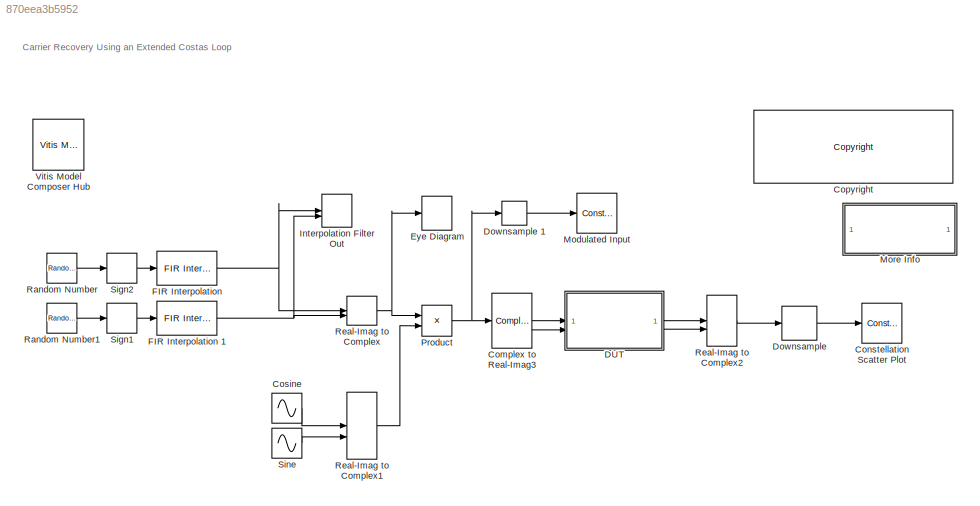
MODEL slx_870eea3b5952
KIND model
CONFIG AbsTol = auto
CONFIG EnableMultiTasking = on
CONFIG FixedStep = auto
CONFIG MaxStep = auto
CONFIG MinStep = auto
CONFIG PreLoadFcn = CostasLoop_PreLoadFcn
CONFIG RelTol = 1e-3
CONFIG SampleTimeConstraint = Unconstrained
CONFIG SolverName = ode45
CONFIG StartTime = 0.0
CONFIG StopTime = 5000
BLOCK [EyeDiagramBlock]  Eye Diagram
  GraphicalSettings = {"GraphicalSettings":{"Style":{"AxesColor":"[0 0 0]","AxesProperties":"struct","BackgroundColor":"[0 0 0]","ContrastColor":"[1 0 1]","CurrentConfiguration":"extmgr.ConfigurationSet","DisplayName":"","LabelsColor":"[0.686274509803922 0.686274509803922 0.686274509803922]","LineColor":"[1 1 0.0667]","LineProperties":"struct","LineStyle":"-","LineWidth":"0.5","Marker":"none","MarkerEdgeColor":"auto","...<+171ch>
  NameLocation = top
  SampleOffset = 16
  SamplesPerSymbol = 32
  ScopeFrameLocation = window
  ScopeSpecificationString = comm.scopes.EyeDiagramBlockCfg('CurrentConfiguration', extmgr.ConfigurationSet(extmgr.Configuration('Core','General UI',true),extmgr.Configuration('Core','Source UI',true),extmgr.Configuration('Sources','WiredSimulink',true),extmgr.Configuration('Sources','Streaming',false),extmgr.Configuration('Sources','File',false),extmgr.Configuration('Sources','Simulink',false),extmgr.Configuration('Sources',...<+1122ch>
  SymbolsPerTrace = 1
  Tag = EyeDiagram
  Title = Eye Diagram
  Visible = on
  WasSavedAsWebScope = on
  WindowPosition = [560.000000,350.000000,800.000000,500.000000,]
  YLimits = [-2.0252 2.0024]
BLOCK [ComplexToRealImag] Complex to Real-Imag3
BLOCK [ConstellationDiagram] Constellation Scatter Plot
  DefaultConfigurationName = comm.scopes.ConstellationDiagramBlockCfg
  GraphicalSettings = {"GraphicalSettings":{"Style":{"AuxLineProperties":"struct","AxesProperties":"struct","Box":"on","Color":"[1 1 0.0666666666666667]","CurrentConfiguration":"extmgr.ConfigurationSet","FontName":"Helvetica","FontSize":"10","FontUnits":"points","FontWeight":"normal","LineColor":"[1 1 0.0666666666666667]","LineProperties":"struct","LineStyle":"-","LineWidth":"0.5","Marker":".","MarkerEdgeColor":"auto",...<+748ch>
  SamplesPerSymbol = 4
  ScopeFrameLocation = window
  ScopeSpecificationString = comm.scopes.ConstellationDiagramBlockCfg('CurrentConfiguration', extmgr.ConfigurationSet(extmgr.Configuration('Core','General UI',true),extmgr.Configuration('Core','Source UI',true),extmgr.Configuration('Sources','WiredSimulink',true),extmgr.Configuration('Sources','Simulink',false),extmgr.Configuration('Sources','SimulinkEvent',false),extmgr.Configuration('Sources','SPTool',false),extmgr.Configur...<+2353ch>
  SymbolsToDisplay = 40
  SymbolsToDisplaySource = Property
  Tag = ScatterPlot
  Title = Scatter Plot
  Visible = on
  WasSavedAsWebScope = on
  WindowPosition = [1252.000000,116.000000,568.000000,545.000000,]
  XLimits = [-1.5 1.5]
  YLimits = [-1.5 1.5]
BLOCK [Reference] <copyright redacted>
  SourceBlock = hdlUtilities/<copyright redacted>
  SourceType = Xilinx <copyright redacted>
BLOCK [Sin] Cosine
  Frequency = 2*pi*0.001/8
  NameLocation = top
  Phase = pi/2
  SampleTime = 8
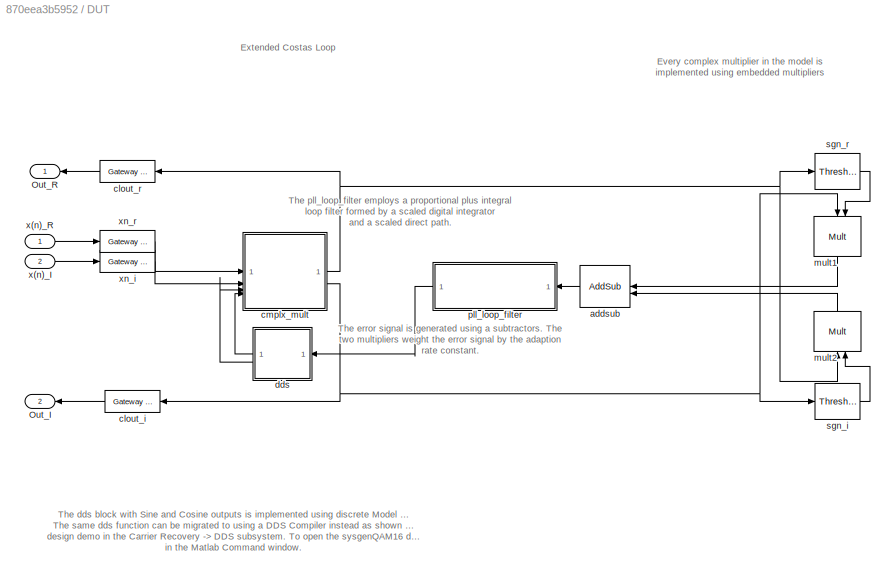
BLOCK [SubSystem] DUT
BLOCK [Outport] DUT/Out_I
  Port = 2
BLOCK [Outport] DUT/Out_R
  NameLocation = top
BLOCK [Reference] DUT/addsub  REF=hdlBasic/AddSub
  SourceBlock = hdlBasic/AddSub
  SourceType = Adder/Subtracter Block
BLOCK [Reference] DUT/clout_i  REF=hdlBasic/Gateway Out
  SourceBlock = hdlBasic/Gateway Out
  SourceType = Gateway Out Block
BLOCK [Reference] DUT/clout_r  REF=hdlBasic/Gateway Out
  SourceBlock = hdlBasic/Gateway Out
  SourceType = Gateway Out Block
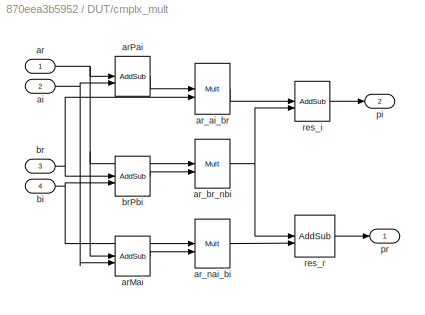
BLOCK [SubSystem] DUT/cmplx_mult
BLOCK [Inport] DUT/cmplx_mult/ai
  Port = 2
BLOCK [Inport] DUT/cmplx_mult/ar
  NameLocation = top
BLOCK [Reference] DUT/cmplx_mult/arMai  REF=hdlBasic/AddSub
  SourceBlock = hdlBasic/AddSub
  SourceType = Adder/Subtracter Block
BLOCK [Reference] DUT/cmplx_mult/arPai  REF=hdlBasic/AddSub
  NameLocation = top
  SourceBlock = hdlBasic/AddSub
  SourceType = Adder/Subtracter Block
BLOCK [Reference] DUT/cmplx_mult/ar_ai_br  REF=hdlBasic/Mult
  NameLocation = top
  SourceBlock = hdlBasic/Mult
  SourceType = Multiplier Block
BLOCK [Reference] DUT/cmplx_mult/ar_br_nbi  REF=hdlBasic/Mult
  SourceBlock = hdlBasic/Mult
  SourceType = Multiplier Block
BLOCK [Reference] DUT/cmplx_mult/ar_nai_bi  REF=hdlBasic/Mult
  SourceBlock = hdlBasic/Mult
  SourceType = Multiplier Block
BLOCK [Inport] DUT/cmplx_mult/bi
  Port = 4
BLOCK [Inport] DUT/cmplx_mult/br
  NameLocation = top
  Port = 3
BLOCK [Reference] DUT/cmplx_mult/brPbi  REF=hdlBasic/AddSub
  SourceBlock = hdlBasic/AddSub
  SourceType = Adder/Subtracter Block
BLOCK [Outport] DUT/cmplx_mult/pi
  Port = 2
BLOCK [Outport] DUT/cmplx_mult/pr
BLOCK [Reference] DUT/cmplx_mult/res_i  REF=hdlBasic/AddSub
  SourceBlock = hdlBasic/AddSub
  SourceType = Adder/Subtracter Block
BLOCK [Reference] DUT/cmplx_mult/res_r  REF=hdlBasic/AddSub
  SourceBlock = hdlBasic/AddSub
  SourceType = Adder/Subtracter Block
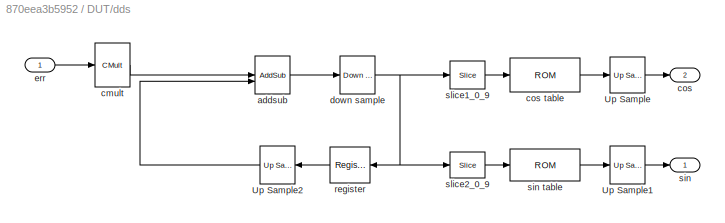
BLOCK [SubSystem] DUT/dds
BLOCK [Reference] DUT/dds/Up Sample  REF=hdlBasic/Up Sample
  SourceBlock = hdlBasic/Up Sample
  SourceType = Up Sampler Block
BLOCK [Reference] DUT/dds/Up Sample1  REF=hdlBasic/Up Sample
  SourceBlock = hdlBasic/Up Sample
  SourceType = Up Sampler Block
BLOCK [Reference] DUT/dds/Up Sample2  REF=hdlBasic/Up Sample
  SourceBlock = hdlBasic/Up Sample
  SourceType = Up Sampler Block
BLOCK [Reference] DUT/dds/addsub  REF=hdlBasic/AddSub
  SourceBlock = hdlBasic/AddSub
  SourceType = Adder/Subtracter Block
BLOCK [Reference] DUT/dds/cmult  REF=hdlBasic/CMult
  SourceBlock = hdlBasic/CMult
  SourceType = Constant Multiplier Block
BLOCK [Outport] DUT/dds/cos
  Port = 2
BLOCK [Reference] DUT/dds/cos table  REF=hdlBasic/ROM
  SourceBlock = hdlBasic/ROM
  SourceType = Single Port Read-Only Memory Block
BLOCK [Reference] DUT/dds/down sample  REF=hdlBasic/Down Sample
  SourceBlock = hdlBasic/Down Sample
  SourceType = Down Sampler Block
BLOCK [Inport] DUT/dds/err
BLOCK [Reference] DUT/dds/register  REF=hdlBasic/Register
  SourceBlock = hdlBasic/Register
  SourceType = Register Block
BLOCK [Outport] DUT/dds/sin
BLOCK [Reference] DUT/dds/sin table  REF=hdlBasic/ROM
  SourceBlock = hdlBasic/ROM
  SourceType = Single Port Read-Only Memory Block
BLOCK [Reference] DUT/dds/slice1_0_9  REF=hdlBasic/Slice
  SourceBlock = hdlBasic/Slice
  SourceType = Bit Slice Extractor Block
BLOCK [Reference] DUT/dds/slice2_0_9  REF=hdlBasic/Slice
  SourceBlock = hdlBasic/Slice
  SourceType = Bit Slice Extractor Block
BLOCK [Reference] DUT/mult1  REF=hdlBasic/Mult
  NameLocation = right
  SourceBlock = hdlBasic/Mult
  SourceType = Multiplier Block
BLOCK [Reference] DUT/mult2  REF=hdlBasic/Mult
  NameLocation = right
  SourceBlock = hdlBasic/Mult
  SourceType = Multiplier Block
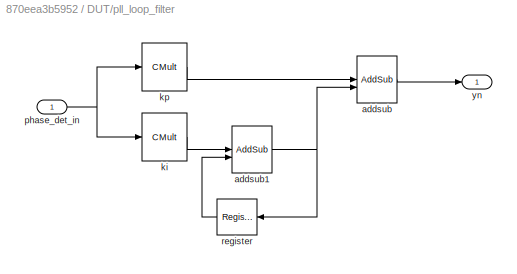
BLOCK [SubSystem] DUT/pll_loop_filter
  NameLocation = top
BLOCK [Reference] DUT/pll_loop_filter/addsub  REF=hdlBasic/AddSub
  SourceBlock = hdlBasic/AddSub
  SourceType = Adder/Subtracter Block
BLOCK [Reference] DUT/pll_loop_filter/addsub1  REF=hdlBasic/AddSub
  SourceBlock = hdlBasic/AddSub
  SourceType = Adder/Subtracter Block
BLOCK [Reference] DUT/pll_loop_filter/ki  REF=hdlBasic/CMult
  SourceBlock = hdlBasic/CMult
  SourceType = Constant Multiplier Block
BLOCK [Reference] DUT/pll_loop_filter/kp  REF=hdlBasic/CMult
  SourceBlock = hdlBasic/CMult
  SourceType = Constant Multiplier Block
BLOCK [Inport] DUT/pll_loop_filter/phase_det_in
BLOCK [Reference] DUT/pll_loop_filter/register  REF=hdlBasic/Register
  SourceBlock = hdlBasic/Register
  SourceType = Register Block
BLOCK [Outport] DUT/pll_loop_filter/yn
BLOCK [Reference] DUT/sgn_i  REF=hdlBasic/Threshold
  SourceBlock = hdlBasic/Threshold
  SourceType = Threshold Block
BLOCK [Reference] DUT/sgn_r  REF=hdlBasic/Threshold
  NameLocation = top
  SourceBlock = hdlBasic/Threshold
  SourceType = Threshold Block
BLOCK [Inport] DUT/x(n)_I
  Port = 2
BLOCK [Inport] DUT/x(n)_R
  NameLocation = top
BLOCK [Reference] DUT/xn_i  REF=hdlBasic/Gateway In
  SourceBlock = hdlBasic/Gateway In
  SourceType = Gateway In Block
BLOCK [Reference] DUT/xn_r  REF=hdlBasic/Gateway In
  NameLocation = top
  SourceBlock = hdlBasic/Gateway In
  SourceType = Gateway In Block
BLOCK [DownSample] Downsample 
  InputProcessing = Inherited (this choice will be removed - see release notes)
  N = 8
  RateOptions = Allow multirate processing
  UserDataPersistent = on
BLOCK [DownSample] Downsample 1
  InputProcessing = Inherited (this choice will be removed - see release notes)
  N = 8
  RateOptions = Allow multirate processing
  UserDataPersistent = on
  phase = 2
BLOCK [Reference] FIR Interpolation   REF=dspmlti4/FIR
Interpolation
  NameLocation = top
  SourceBlock = dspmlti4/FIR\nInterpolation
  SourceType = FIR Interpolation
  UserDataPersistent = on
BLOCK [Reference] FIR Interpolation 1  REF=dspmlti4/FIR
Interpolation
  SourceBlock = dspmlti4/FIR\nInterpolation
  SourceType = FIR Interpolation
  UserDataPersistent = on
BLOCK [Record] Interpolation Filter Out
  CompatibilityTag = XY
  FileSettingsInternal = {"entries":[{"content":{"excelSettings":{"content":{},"type":"Streamout.ExcelSettings"}},"type":"Streamout.FileSettingStorage","uuid":""}],"packageUris":["http:\/\/schema.mathworks.com\/mf0\/streamout_blocks\/R2020a"],"version":"1.0"}
  Layout = [1 1]
  NameLocation = top
  SignalsInternal = {"entries":[{"content":{"signals":[{"content":{"blockPath":[],"dimensions":[1],"domain":"","lineColor":"#a2142f","plots":[ 1 ],"port":1,"signalID":1,"signalName":"XY Graph:1"},"type":"RecordBlkView.Signal","uuid":""},{"content":{"blockPath":[],"dimensions":[1],"domain":"","lineColor":"#139fff","plots":[ 1 ],"port":2,"signalID":2,"signalName":"XY Graph:2"},"type":"RecordBlkView.Signal","uuid":""}]}...<+144ch>
  VisualizationBindings = {"xyplotplugin":{"info":[{"series":[{"bindingParametersList":[{"parameter":"X-Axis","signalID":1,"signalName":"XY Graph:1"},{"parameter":"Y-Axis","signalID":2,"signalName":"XY Graph:2"}],"seriesID":0}],"subplotID":1}]}}
  st = -1
BLOCK [ConstellationDiagram] Modulated Input
  DefaultConfigurationName = comm.scopes.ConstellationDiagramBlockCfg
  GraphicalSettings = {"GraphicalSettings":{"Style":{"AuxLineProperties":"struct","AxesProperties":"struct","Box":"on","Color":"[1 1 0.0666666666666667]","CurrentConfiguration":"extmgr.ConfigurationSet","FontName":"Helvetica","FontSize":"10","FontUnits":"points","FontWeight":"normal","LineColor":"[1 1 0.0666666666666667]","LineProperties":"struct","LineStyle":"-","LineWidth":"0.5","Marker":".","MarkerEdgeColor":"auto",...<+745ch>
  SamplesPerSymbol = 4
  ScopeFrameLocation = window
  ScopeSpecificationString = comm.scopes.ConstellationDiagramBlockCfg('CurrentConfiguration', extmgr.ConfigurationSet(extmgr.Configuration('Core','General UI',true),extmgr.Configuration('Core','Source UI',true),extmgr.Configuration('Sources','WiredSimulink',true),extmgr.Configuration('Visuals','Constellation',true,'MinYLim','-1.5','MaxYLim','1.5','MinXLim','-1.5','MaxXLim','1.5','AxesProperties',struct('Color',[0 0 0],'XColor...<+1404ch>
  ShowReferenceConstellation = off
  SymbolsToDisplay = 40
  SymbolsToDisplaySource = Property
  Tag = ScatterPlot
  Title = Scatter Plot
  Visible = on
  WasSavedAsWebScope = on
  WindowPosition = [37.000000,72.000000,578.000000,549.000000,]
  XLimits = [-1.5 1.5]
  YLimits = [-1.5 1.5]
BLOCK [SubSystem] More Info
BLOCK [Product] Product
  InputSameDT = on
  OutDataTypeStr = Inherit: Same as first input
  SaturateOnIntegerOverflow = on
BLOCK [RandomNumber] Random Number
  NameLocation = top
  SampleTime = 8
BLOCK [RandomNumber] Random Number1
  SampleTime = 8
  Seed = 2
BLOCK [RealImagToComplex] Real-Imag to Complex
BLOCK [RealImagToComplex] Real-Imag to Complex1
BLOCK [RealImagToComplex] Real-Imag to Complex2
BLOCK [Signum] Sign1
BLOCK [Signum] Sign2
  NameLocation = top
BLOCK [Sin] Sine
  Frequency = 2*pi*0.001/8
  SampleTime = 8
BLOCK [Reference] Vitis Model Composer Hub  REF=vmcUtilities/Vitis Model Composer Hub
  SourceBlock = vmcUtilities/Vitis Model Composer Hub
  SourceType = VMC Hub
  Tag = genX
  UserDataPersistent = on
ANNOTATION (root): Carrier Recovery Using an Extended Costas Loop
ANNOTATION DUT: Every complex multiplier in the model is implemented using embedded multipliers
ANNOTATION DUT: Extended Costas Loop
ANNOTATION DUT: The dds block with Sine and Cosine outputs is implemented using discrete Model composer HDL blocksets. The same dds function can be migrated to using a DDS Compiler instead as shown in the "sysgenQAM16.slx" design demo in the Carrier Recovery -> DDS subsystem. To open the sysgenQAM16 demo, type "sysgenQAM16" in the Matlab Command window.
ANNOTATION DUT: The error signal is generated using a subtractors. The two multipliers weight the error signal by the adaption rate constant.
ANNOTATION DUT: The pll_loop_filter employs a proportional plus integral loop filter formed by a scaled digital integrator and a scaled direct path.
ANNOTATION More Info: Carrier Recovery Using an Extended Costas Loop
ANNOTATION More Info: This design shows an implementation of Costas Loop used for Carrier Recovery. The modulated input is modeled using simulink blocks while the costas loop algorithm is implemented using System Generator for DSP blocks. The dds block with Sine and Cosine outputs is implemented using basic System Generator Blocks.The pll_loop_filter employs a proportional plus integral loop filter formed by a scaled d...<+273ch>
LINE Complex to Real-Imag3:1 -> DUT:1
LINE Complex to Real-Imag3:2 -> DUT:2
LINE Cosine:1 -> Real-Imag to Complex1:1
LINE DUT/addsub:1 -> DUT/pll_loop_filter:1
LINE DUT/clout_i:1 -> DUT/Out_I:1
LINE DUT/clout_r:1 -> DUT/Out_R:1
NET DUT/cmplx_mult/ai:1 -> DUT/cmplx_mult/arMai:2, DUT/cmplx_mult/arPai:2
NET DUT/cmplx_mult/ar:1 -> DUT/cmplx_mult/arMai:1, DUT/cmplx_mult/arPai:1, DUT/cmplx_mult/ar_br_nbi:1
LINE DUT/cmplx_mult/arMai:1 -> DUT/cmplx_mult/ar_nai_bi:2
LINE DUT/cmplx_mult/arPai:1 -> DUT/cmplx_mult/ar_ai_br:1
LINE DUT/cmplx_mult/ar_ai_br:1 -> DUT/cmplx_mult/res_i:1
NET DUT/cmplx_mult/ar_br_nbi:1 -> DUT/cmplx_mult/res_i:2, DUT/cmplx_mult/res_r:1
LINE DUT/cmplx_mult/ar_nai_bi:1 -> DUT/cmplx_mult/res_r:2
NET DUT/cmplx_mult/bi:1 -> DUT/cmplx_mult/ar_nai_bi:1, DUT/cmplx_mult/brPbi:2
NET DUT/cmplx_mult/br:1 -> DUT/cmplx_mult/ar_ai_br:2, DUT/cmplx_mult/brPbi:1
LINE DUT/cmplx_mult/brPbi:1 -> DUT/cmplx_mult/ar_br_nbi:2
LINE DUT/cmplx_mult/res_i:1 -> DUT/cmplx_mult/pi:1
LINE DUT/cmplx_mult/res_r:1 -> DUT/cmplx_mult/pr:1
NET DUT/cmplx_mult:1 -> DUT/clout_r:1, DUT/mult2:1, DUT/sgn_r:1
NET DUT/cmplx_mult:2 -> DUT/clout_i:1, DUT/mult1:1, DUT/sgn_i:1
LINE DUT/dds/Up Sample1:1 -> DUT/dds/sin:1
LINE DUT/dds/Up Sample2:1 -> DUT/dds/addsub:2
LINE DUT/dds/Up Sample:1 -> DUT/dds/cos:1
LINE DUT/dds/addsub:1 -> DUT/dds/down sample:1
LINE DUT/dds/cmult:1 -> DUT/dds/addsub:1
LINE DUT/dds/cos table:1 -> DUT/dds/Up Sample:1
NET DUT/dds/down sample:1 -> DUT/dds/register:1, DUT/dds/slice1_0_9:1, DUT/dds/slice2_0_9:1
LINE DUT/dds/err:1 -> DUT/dds/cmult:1
LINE DUT/dds/register:1 -> DUT/dds/Up Sample2:1
LINE DUT/dds/sin table:1 -> DUT/dds/Up Sample1:1
LINE DUT/dds/slice1_0_9:1 -> DUT/dds/cos table:1
LINE DUT/dds/slice2_0_9:1 -> DUT/dds/sin table:1
LINE DUT/dds:1 -> DUT/cmplx_mult:4
LINE DUT/dds:2 -> DUT/cmplx_mult:3
LINE DUT/mult1:1 -> DUT/addsub:1
LINE DUT/mult2:1 -> DUT/addsub:2
NET DUT/pll_loop_filter/addsub1:1 -> DUT/pll_loop_filter/addsub:2, DUT/pll_loop_filter/register:1
LINE DUT/pll_loop_filter/addsub:1 -> DUT/pll_loop_filter/yn:1
LINE DUT/pll_loop_filter/ki:1 -> DUT/pll_loop_filter/addsub1:1
LINE DUT/pll_loop_filter/kp:1 -> DUT/pll_loop_filter/addsub:1
NET DUT/pll_loop_filter/phase_det_in:1 -> DUT/pll_loop_filter/ki:1, DUT/pll_loop_filter/kp:1
LINE DUT/pll_loop_filter/register:1 -> DUT/pll_loop_filter/addsub1:2
LINE DUT/pll_loop_filter:1 -> DUT/dds:1
LINE DUT/sgn_i:1 -> DUT/mult2:2
LINE DUT/sgn_r:1 -> DUT/mult1:2
LINE DUT/x(n)_I:1 -> DUT/xn_i:1
LINE DUT/x(n)_R:1 -> DUT/xn_r:1
LINE DUT/xn_i:1 -> DUT/cmplx_mult:2
LINE DUT/xn_r:1 -> DUT/cmplx_mult:1
LINE DUT:1 -> Real-Imag to Complex2:1
LINE DUT:2 -> Real-Imag to Complex2:2
LINE Downsample 1:1 -> Modulated Input:1
LINE Downsample :1 -> Constellation Scatter Plot:1
NET FIR Interpolation 1:1 -> Interpolation Filter Out:2, Real-Imag to Complex:2
NET FIR Interpolation :1 -> Interpolation Filter Out:1, Real-Imag to Complex:1
NET Product:1 -> Complex to Real-Imag3:1, Downsample 1:1
LINE Random Number1:1 -> Sign1:1
LINE Random Number:1 -> Sign2:1
LINE Real-Imag to Complex1:1 -> Product:2
LINE Real-Imag to Complex2:1 -> Downsample :1
NET Real-Imag to Complex:1 ->  Eye Diagram:1, Product:1
LINE Sign1:1 -> FIR Interpolation 1:1
LINE Sign2:1 -> FIR Interpolation :1
LINE Sine:1 -> Real-Imag to Complex1:2
note: NET lines group one-source signal fan-out (src -> all destinations, sorted); 1:1 wires keep LINE
